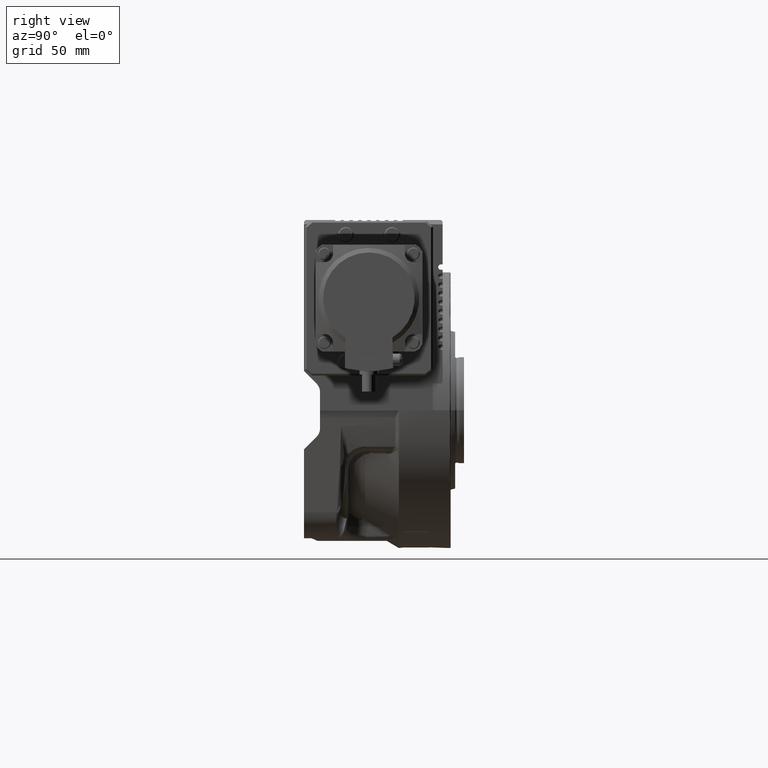
[diagram: clean part render]
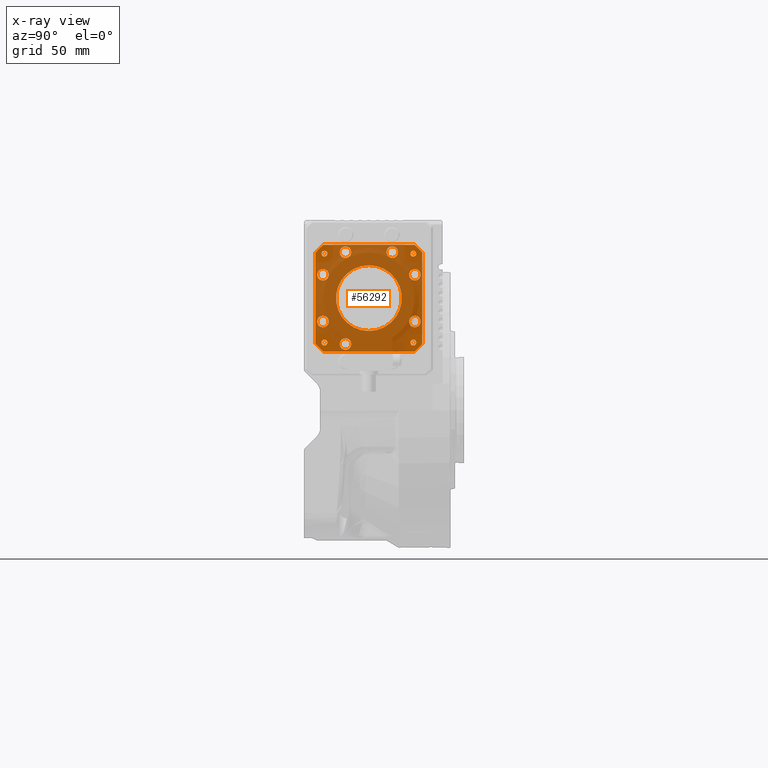
[diagram: x-ray — body ghosted, one internal face saturated and labeled with its STEP entity id]
A machine part, right view, then the same camera in x-ray: the body is ghosted and one INTERNAL B-rep face — a face not visible from any outside direction — is saturated and labeled: STEP entity #56292.
In plain terms, the highlighted planar face has unit normal (1, -0, -0).
Its self-contained STEP definition (entity closure, byte-faithful):
#502 = AXIS2_PLACEMENT_3D ( 'NONE', #1379, #20233, #52288 ) ;
#758 = CARTESIAN_POINT ( 'NONE',  ( -24.99622471494485154, -24.99622471494404863, -71.50000000000002842 ) ) ;
#787 = VERTEX_POINT ( 'NONE', #56957 ) ;
#945 = AXIS2_PLACEMENT_3D ( 'NONE', #15372, #34284, #45814 ) ;
#1262 = DIRECTION ( 'NONE',  ( -1.000000000000000000, 0.000000000000000000, 0.000000000000000000 ) ) ;
#1376 = VERTEX_POINT ( 'NONE', #25057 ) ;
#1379 = CARTESIAN_POINT ( 'NONE',  ( 24.99622471494467035, 24.99622471494424403, -71.50000000000002842 ) ) ;
#1796 = EDGE_CURVE ( 'NONE', #64424, #15662, #50999, .T. ) ;
#2026 = CIRCLE ( 'NONE', #47924, 1.649999999999991696 ) ;
#2153 = EDGE_CURVE ( 'NONE', #10364, #52422, #61493, .T. ) ;
#2171 = ORIENTED_EDGE ( 'NONE', *, *, #6304, .T. ) ;
#2485 = CIRCLE ( 'NONE', #31303, 1.649999999999991696 ) ;
#2538 = LINE ( 'NONE', #27560, #61538 ) ;
#2707 = EDGE_CURVE ( 'NONE', #16694, #59980, #54863, .T. ) ;
#4583 = ORIENTED_EDGE ( 'NONE', *, *, #16312, .T. ) ;
#4785 = FACE_BOUND ( 'NONE', #21285, .T. ) ;
#4808 = CARTESIAN_POINT ( 'NONE',  ( 25.69533031505920917, 30.00000000000002132, -71.50000000000001421 ) ) ;
#5217 = DIRECTION ( 'NONE',  ( 0.000000000000000000, 0.000000000000000000, 1.000000000000000000 ) ) ;
#5226 = EDGE_LOOP ( 'NONE', ( #26901, #14136 ) ) ;
#5608 = DIRECTION ( 'NONE',  ( 0.000000000000000000, 0.000000000000000000, -1.000000000000000000 ) ) ;
#5950 = VERTEX_POINT ( 'NONE', #28495 ) ;
#6010 = FACE_BOUND ( 'NONE', #12744, .T. ) ;
#6289 = EDGE_CURVE ( 'NONE', #49011, #5950, #57719, .T. ) ;
#6304 = EDGE_CURVE ( 'NONE', #29162, #56838, #40636, .T. ) ;
#6323 = EDGE_LOOP ( 'NONE', ( #60320, #22150 ) ) ;
#7144 = AXIS2_PLACEMENT_3D ( 'NONE', #19734, #57545, #69885 ) ;
#7497 = ORIENTED_EDGE ( 'NONE', *, *, #77351, .T. ) ;
#7500 = CARTESIAN_POINT ( 'NONE',  ( -13.16572449244688592, 25.83918920146266629, -71.50000000000002842 ) ) ;
#7637 = VERTEX_POINT ( 'NONE', #34072 ) ;
#7841 = CARTESIAN_POINT ( 'NONE',  ( -30.00000000000001776, 1.040834085586084257E-14, -71.50000000000002842 ) ) ;
#8119 = CARTESIAN_POINT ( 'NONE',  ( 25.69533031505918785, -29.99999999999999289, -71.50000000000001421 ) ) ;
#8474 = CARTESIAN_POINT ( 'NONE',  ( -25.83918920146270182, 13.16572449244680776, -71.50000000000002842 ) ) ;
#8846 = CARTESIAN_POINT ( 'NONE',  ( -5.204170427930421283E-15, 18.50000000000002132, -71.50000000000001421 ) ) ;
#8867 = CIRCLE ( 'NONE', #66578, 3.249999999999999556 ) ;
#8941 = ORIENTED_EDGE ( 'NONE', *, *, #61870, .T. ) ;
#9009 = AXIS2_PLACEMENT_3D ( 'NONE', #33844, #53177, #33450 ) ;
#9181 = DIRECTION ( 'NONE',  ( 0.000000000000000000, 0.000000000000000000, 1.000000000000000000 ) ) ;
#9326 = CARTESIAN_POINT ( 'NONE',  ( -3.469446951953614189E-15, 1.040834085586084257E-14, -71.50000000000001421 ) ) ;
#9373 = CIRCLE ( 'NONE', #31656, 39.50000000000002132 ) ;
#9548 = EDGE_CURVE ( 'NONE', #13126, #18011, #28665, .T. ) ;
#9980 = EDGE_CURVE ( 'NONE', #28465, #19811, #2538, .T. ) ;
#10150 = AXIS2_PLACEMENT_3D ( 'NONE', #13357, #37608, #56527 ) ;
#10364 = VERTEX_POINT ( 'NONE', #47190 ) ;
#10926 = FACE_BOUND ( 'NONE', #31339, .T. ) ;
#11355 = CARTESIAN_POINT ( 'NONE',  ( -25.83918920146280129, -13.16572449244660348, -71.50000000000002842 ) ) ;
#11490 = CARTESIAN_POINT ( 'NONE',  ( -24.99622471494432219, 24.99622471494459575, -71.50000000000002842 ) ) ;
#11593 = DIRECTION ( 'NONE',  ( -0.000000000000000000, -1.000000000000000000, -0.000000000000000000 ) ) ;
#11859 = CARTESIAN_POINT ( 'NONE',  ( -5.204170427930421283E-15, 1.040834085586084257E-14, -71.50000000000002842 ) ) ;
#12350 = DIRECTION ( 'NONE',  ( 1.000000000000000000, 0.000000000000000000, 0.000000000000000000 ) ) ;
#12682 = VERTEX_POINT ( 'NONE', #35809 ) ;
#12734 = CARTESIAN_POINT ( 'NONE',  ( 29.08918920146269116, 13.16572449244680065, -71.50000000000002842 ) ) ;
#12744 = EDGE_LOOP ( 'NONE', ( #15459, #59049 ) ) ;
#13126 = VERTEX_POINT ( 'NONE', #56958 ) ;
#13357 = CARTESIAN_POINT ( 'NONE',  ( -5.204170427930421283E-15, 1.040834085586084257E-14, -71.50000000000002842 ) ) ;
#13446 = CARTESIAN_POINT ( 'NONE',  ( -16.41572449244688414, 25.83918920146266629, -71.50000000000002842 ) ) ;
#13562 = DIRECTION ( 'NONE',  ( 0.000000000000000000, 0.000000000000000000, 1.000000000000000000 ) ) ;
#13613 = ORIENTED_EDGE ( 'NONE', *, *, #21816, .T. ) ;
#14068 = EDGE_CURVE ( 'NONE', #61106, #27919, #33386, .T. ) ;
#14136 = ORIENTED_EDGE ( 'NONE', *, *, #56473, .T. ) ;
#14143 = EDGE_CURVE ( 'NONE', #12682, #61910, #64954, .T. ) ;
#14261 = EDGE_CURVE ( 'NONE', #67599, #63927, #79310, .T. ) ;
#14429 = CIRCLE ( 'NONE', #57741, 39.50000000000002132 ) ;
#14606 = VERTEX_POINT ( 'NONE', #81141 ) ;
#15372 = CARTESIAN_POINT ( 'NONE',  ( 13.16572449244687526, -25.83918920146264142, -71.50000000000002842 ) ) ;
#15459 = ORIENTED_EDGE ( 'NONE', *, *, #20947, .T. ) ;
#15466 = DIRECTION ( 'NONE',  ( 1.000000000000000000, 1.065814103640150279E-14, 0.000000000000000000 ) ) ;
#15583 = AXIS2_PLACEMENT_3D ( 'NONE', #11490, #29592, #78512 ) ;
#15662 = VERTEX_POINT ( 'NONE', #54120 ) ;
#15710 = ORIENTED_EDGE ( 'NONE', *, *, #1796, .T. ) ;
#15751 = CIRCLE ( 'NONE', #26235, 3.249999999999996003 ) ;
#16013 = DIRECTION ( 'NONE',  ( -1.000000000000000000, 0.000000000000000000, 0.000000000000000000 ) ) ;
#16312 = EDGE_CURVE ( 'NONE', #19811, #12682, #80858, .T. ) ;
#16694 = VERTEX_POINT ( 'NONE', #32760 ) ;
#16791 = DIRECTION ( 'NONE',  ( 1.000000000000000000, -0.000000000000000000, 0.000000000000000000 ) ) ;
#17052 = FACE_BOUND ( 'NONE', #46057, .T. ) ;
#17160 = VERTEX_POINT ( 'NONE', #8846 ) ;
#17383 = DIRECTION ( 'NONE',  ( -1.000000000000000000, 0.000000000000000000, 0.000000000000000000 ) ) ;
#17470 = FACE_BOUND ( 'NONE', #57765, .T. ) ;
#18011 = VERTEX_POINT ( 'NONE', #77582 ) ;
#18424 = ORIENTED_EDGE ( 'NONE', *, *, #24948, .T. ) ;
#18809 = CARTESIAN_POINT ( 'NONE',  ( 24.99622471494431508, -24.99622471494458509, -71.50000000000002842 ) ) ;
#19076 = EDGE_CURVE ( 'NONE', #61910, #67599, #14429, .T. ) ;
#19574 = VERTEX_POINT ( 'NONE', #27257 ) ;
#19734 = CARTESIAN_POINT ( 'NONE',  ( 25.83918920146269116, 13.16572449244680065, -71.50000000000002842 ) ) ;
#19811 = VERTEX_POINT ( 'NONE', #24632 ) ;
#20018 = DIRECTION ( 'NONE',  ( 0.000000000000000000, 0.000000000000000000, 1.000000000000000000 ) ) ;
#20233 = DIRECTION ( 'NONE',  ( 0.000000000000000000, 0.000000000000000000, 1.000000000000000000 ) ) ;
#20526 = DIRECTION ( 'NONE',  ( 0.000000000000000000, 0.000000000000000000, 1.000000000000000000 ) ) ;
#20947 = EDGE_CURVE ( 'NONE', #27919, #61106, #38326, .T. ) ;
#20993 = EDGE_LOOP ( 'NONE', ( #7497, #78759 ) ) ;
#21285 = EDGE_LOOP ( 'NONE', ( #48357, #2171 ) ) ;
#21816 = EDGE_CURVE ( 'NONE', #59980, #16694, #15751, .T. ) ;
#22123 = CARTESIAN_POINT ( 'NONE',  ( 23.34622471494432361, -24.99622471494458509, -71.50000000000002842 ) ) ;
#22150 = ORIENTED_EDGE ( 'NONE', *, *, #67196, .T. ) ;
#22502 = EDGE_CURVE ( 'NONE', #52422, #10364, #53727, .T. ) ;
#22742 = ORIENTED_EDGE ( 'NONE', *, *, #45240, .T. ) ;
#23138 = DIRECTION ( 'NONE',  ( 0.000000000000000000, 0.000000000000000000, 1.000000000000000000 ) ) ;
#24130 = CARTESIAN_POINT ( 'NONE',  ( 26.64622471494466183, 24.99622471494424403, -71.50000000000002842 ) ) ;
#24152 = CIRCLE ( 'NONE', #59608, 3.249999999999999556 ) ;
#24180 = DIRECTION ( 'NONE',  ( 0.000000000000000000, 1.000000000000000000, 7.501506923142947918E-16 ) ) ;
#24335 = LINE ( 'NONE', #73690, #25143 ) ;
#24563 = DIRECTION ( 'NONE',  ( -1.000000000000000000, 0.000000000000000000, 0.000000000000000000 ) ) ;
#24632 = CARTESIAN_POINT ( 'NONE',  ( -25.69533031505921983, -29.99999999999997868, -71.50000000000001421 ) ) ;
#24742 = DIRECTION ( 'NONE',  ( 0.000000000000000000, 0.000000000000000000, 1.000000000000000000 ) ) ;
#24936 = ORIENTED_EDGE ( 'NONE', *, *, #59220, .T. ) ;
#24948 = EDGE_CURVE ( 'NONE', #787, #40172, #24335, .T. ) ;
#25057 = CARTESIAN_POINT ( 'NONE',  ( -29.08918920146269826, 13.16572449244680776, -71.50000000000002842 ) ) ;
#25143 = VECTOR ( 'NONE', #11593, 1000.000000000000000 ) ;
#25700 = ORIENTED_EDGE ( 'NONE', *, *, #2153, .T. ) ;
#26235 = AXIS2_PLACEMENT_3D ( 'NONE', #65513, #23138, #17383 ) ;
#26687 = DIRECTION ( 'NONE',  ( -1.000000000000000000, 0.000000000000000000, 0.000000000000000000 ) ) ;
#26901 = ORIENTED_EDGE ( 'NONE', *, *, #77630, .T. ) ;
#27257 = CARTESIAN_POINT ( 'NONE',  ( 23.34622471494467888, 24.99622471494424403, -71.50000000000002842 ) ) ;
#27321 = DIRECTION ( 'NONE',  ( -1.000000000000000000, 0.000000000000000000, 0.000000000000000000 ) ) ;
#27560 = CARTESIAN_POINT ( 'NONE',  ( -5.204170427930336875E-15, -29.99999999999999289, -71.50000000000002842 ) ) ;
#27919 = VERTEX_POINT ( 'NONE', #73163 ) ;
#28086 = EDGE_LOOP ( 'NONE', ( #35108, #52704 ) ) ;
#28213 = DIRECTION ( 'NONE',  ( -0.000000000000000000, 0.000000000000000000, -1.000000000000000000 ) ) ;
#28337 = CARTESIAN_POINT ( 'NONE',  ( -5.204170427930336875E-15, 30.00000000000001776, -71.50000000000002842 ) ) ;
#28465 = VERTEX_POINT ( 'NONE', #8119 ) ;
#28495 = CARTESIAN_POINT ( 'NONE',  ( -23.34622471494486007, -24.99622471494404863, -71.50000000000002842 ) ) ;
#28665 = CIRCLE ( 'NONE', #41759, 3.249999999999996003 ) ;
#28898 = CARTESIAN_POINT ( 'NONE',  ( -25.83918920146270182, 13.16572449244680776, -71.50000000000002842 ) ) ;
#28913 = DIRECTION ( 'NONE',  ( -0.000000000000000000, 0.000000000000000000, -1.000000000000000000 ) ) ;
#29162 = VERTEX_POINT ( 'NONE', #73699 ) ;
#29329 = EDGE_LOOP ( 'NONE', ( #67743, #25700 ) ) ;
#29592 = DIRECTION ( 'NONE',  ( 0.000000000000000000, 0.000000000000000000, 1.000000000000000000 ) ) ;
#29624 = AXIS2_PLACEMENT_3D ( 'NONE', #45611, #38636, #76844 ) ;
#29815 = FACE_BOUND ( 'NONE', #6323, .T. ) ;
#29856 = AXIS2_PLACEMENT_3D ( 'NONE', #37208, #5608, #61885 ) ;
#30262 = DIRECTION ( 'NONE',  ( -1.000000000000000000, 0.000000000000000000, 0.000000000000000000 ) ) ;
#30798 = CIRCLE ( 'NONE', #53155, 1.649999999999991696 ) ;
#31046 = FACE_OUTER_BOUND ( 'NONE', #59328, .T. ) ;
#31303 = AXIS2_PLACEMENT_3D ( 'NONE', #53223, #78285, #45831 ) ;
#31339 = EDGE_LOOP ( 'NONE', ( #15710, #81070 ) ) ;
#31656 = AXIS2_PLACEMENT_3D ( 'NONE', #35895, #28913, #67945 ) ;
#32086 = AXIS2_PLACEMENT_3D ( 'NONE', #8474, #33508, #27321 ) ;
#32760 = CARTESIAN_POINT ( 'NONE',  ( -16.41572449244706888, -25.83918920146254905, -71.50000000000002842 ) ) ;
#33386 = CIRCLE ( 'NONE', #7144, 3.249999999999999556 ) ;
#33450 = DIRECTION ( 'NONE',  ( -1.000000000000000000, 0.000000000000000000, 0.000000000000000000 ) ) ;
#33508 = DIRECTION ( 'NONE',  ( 0.000000000000000000, 0.000000000000000000, 1.000000000000000000 ) ) ;
#33844 = CARTESIAN_POINT ( 'NONE',  ( -25.83918920146280129, -13.16572449244660348, -71.50000000000002842 ) ) ;
#33887 = AXIS2_PLACEMENT_3D ( 'NONE', #40510, #53284, #54100 ) ;
#34072 = CARTESIAN_POINT ( 'NONE',  ( -26.64622471494431366, 24.99622471494459575, -71.50000000000002842 ) ) ;
#34236 = DIRECTION ( 'NONE',  ( -1.000000000000000000, 0.000000000000000000, 0.000000000000000000 ) ) ;
#34284 = DIRECTION ( 'NONE',  ( 0.000000000000000000, 0.000000000000000000, 1.000000000000000000 ) ) ;
#34305 = CIRCLE ( 'NONE', #40873, 39.50000000000000711 ) ;
#34342 = CIRCLE ( 'NONE', #80310, 3.249999999999996003 ) ;
#34347 = CIRCLE ( 'NONE', #502, 1.649999999999991696 ) ;
#34669 = EDGE_CURVE ( 'NONE', #1376, #79478, #67521, .T. ) ;
#35108 = ORIENTED_EDGE ( 'NONE', *, *, #34669, .T. ) ;
#35585 = FACE_BOUND ( 'NONE', #29329, .T. ) ;
#35809 = CARTESIAN_POINT ( 'NONE',  ( -30.00000000000001421, -25.69533031505918075, -71.50000000000001421 ) ) ;
#35895 = CARTESIAN_POINT ( 'NONE',  ( -3.469446951953614189E-15, 1.040834085586084257E-14, -71.50000000000001421 ) ) ;
#36113 = DIRECTION ( 'NONE',  ( -1.406815152949039769E-31, -3.750753461571474945E-16, 1.000000000000000000 ) ) ;
#36382 = FACE_BOUND ( 'NONE', #28086, .T. ) ;
#36435 = EDGE_CURVE ( 'NONE', #56838, #29162, #2026, .T. ) ;
#37208 = CARTESIAN_POINT ( 'NONE',  ( -5.204170427930336875E-15, 1.040834085586084257E-14, -71.50000000000002842 ) ) ;
#37608 = DIRECTION ( 'NONE',  ( -1.406815152949039769E-31, -3.750753461571474945E-16, 1.000000000000000000 ) ) ;
#38326 = CIRCLE ( 'NONE', #63263, 3.249999999999999556 ) ;
#38636 = DIRECTION ( 'NONE',  ( -0.000000000000000000, 0.000000000000000000, -1.000000000000000000 ) ) ;
#39108 = CARTESIAN_POINT ( 'NONE',  ( 25.83918920146269116, 13.16572449244680065, -71.50000000000002842 ) ) ;
#39478 = EDGE_CURVE ( 'NONE', #7637, #14606, #41793, .T. ) ;
#40120 = ORIENTED_EDGE ( 'NONE', *, *, #19076, .T. ) ;
#40172 = VERTEX_POINT ( 'NONE', #47079 ) ;
#40468 = AXIS2_PLACEMENT_3D ( 'NONE', #7500, #24742, #62574 ) ;
#40510 = CARTESIAN_POINT ( 'NONE',  ( -24.99622471494432219, 24.99622471494459575, -71.50000000000002842 ) ) ;
#40636 = CIRCLE ( 'NONE', #59091, 1.649999999999991696 ) ;
#40873 = AXIS2_PLACEMENT_3D ( 'NONE', #55917, #80584, #12350 ) ;
#40891 = ORIENTED_EDGE ( 'NONE', *, *, #14261, .T. ) ;
#41150 = DIRECTION ( 'NONE',  ( -1.000000000000000000, 0.000000000000000000, 0.000000000000000000 ) ) ;
#41228 = DIRECTION ( 'NONE',  ( -1.000000000000000000, 0.000000000000000000, 0.000000000000000000 ) ) ;
#41475 = DIRECTION ( 'NONE',  ( 0.000000000000000000, 0.000000000000000000, 1.000000000000000000 ) ) ;
#41739 = CIRCLE ( 'NONE', #33887, 1.649999999999991696 ) ;
#41759 = AXIS2_PLACEMENT_3D ( 'NONE', #65480, #9181, #34236 ) ;
#41793 = CIRCLE ( 'NONE', #15583, 1.649999999999991696 ) ;
#41949 = CARTESIAN_POINT ( 'NONE',  ( 25.83918920146269471, -13.16572449244678644, -71.50000000000002842 ) ) ;
#42037 = DIRECTION ( 'NONE',  ( 0.000000000000000000, 0.000000000000000000, 1.000000000000000000 ) ) ;
#43761 = EDGE_CURVE ( 'NONE', #69138, #19574, #34347, .T. ) ;
#44603 = EDGE_CURVE ( 'NONE', #15662, #64424, #24152, .T. ) ;
#44819 = CARTESIAN_POINT ( 'NONE',  ( 13.16572449244687526, -25.83918920146264142, -71.50000000000002842 ) ) ;
#45240 = EDGE_CURVE ( 'NONE', #5950, #49011, #30798, .T. ) ;
#45611 = CARTESIAN_POINT ( 'NONE',  ( -3.469446951953614189E-15, 1.040834085586084257E-14, -71.50000000000001421 ) ) ;
#45814 = DIRECTION ( 'NONE',  ( -1.000000000000000000, 0.000000000000000000, 0.000000000000000000 ) ) ;
#45831 = DIRECTION ( 'NONE',  ( -1.000000000000000000, 0.000000000000000000, 0.000000000000000000 ) ) ;
#46045 = DIRECTION ( 'NONE',  ( 0.000000000000000000, 1.000000000000000000, 0.000000000000000000 ) ) ;
#46057 = EDGE_LOOP ( 'NONE', ( #46863, #22742 ) ) ;
#46093 = AXIS2_PLACEMENT_3D ( 'NONE', #28898, #42037, #41228 ) ;
#46863 = ORIENTED_EDGE ( 'NONE', *, *, #6289, .T. ) ;
#47079 = CARTESIAN_POINT ( 'NONE',  ( 29.99999999999999289, -25.69533031505919496, -71.50000000000001421 ) ) ;
#47190 = CARTESIAN_POINT ( 'NONE',  ( -9.915724492446885918, 25.83918920146266629, -71.50000000000002842 ) ) ;
#47229 = AXIS2_PLACEMENT_3D ( 'NONE', #758, #20018, #24563 ) ;
#47924 = AXIS2_PLACEMENT_3D ( 'NONE', #49798, #69907, #75278 ) ;
#48357 = ORIENTED_EDGE ( 'NONE', *, *, #36435, .T. ) ;
#48465 = CARTESIAN_POINT ( 'NONE',  ( -9.915724492447077765, -25.83918920146254905, -71.50000000000002842 ) ) ;
#48493 = AXIS2_PLACEMENT_3D ( 'NONE', #75641, #20526, #26687 ) ;
#48589 = EDGE_CURVE ( 'NONE', #72082, #54322, #63860, .T. ) ;
#48932 = CARTESIAN_POINT ( 'NONE',  ( -22.58918920146270537, 13.16572449244680776, -71.50000000000002842 ) ) ;
#48995 = ORIENTED_EDGE ( 'NONE', *, *, #14143, .T. ) ;
#49011 = VERTEX_POINT ( 'NONE', #53927 ) ;
#49798 = CARTESIAN_POINT ( 'NONE',  ( 24.99622471494431508, -24.99622471494458509, -71.50000000000002842 ) ) ;
#50999 = CIRCLE ( 'NONE', #9009, 3.249999999999999556 ) ;
#51373 = CIRCLE ( 'NONE', #46093, 3.249999999999996003 ) ;
#52260 = DIRECTION ( 'NONE',  ( -1.000000000000000000, 0.000000000000000000, 0.000000000000000000 ) ) ;
#52288 = DIRECTION ( 'NONE',  ( -1.000000000000000000, 0.000000000000000000, 0.000000000000000000 ) ) ;
#52422 = VERTEX_POINT ( 'NONE', #13446 ) ;
#52660 = DIRECTION ( 'NONE',  ( -1.000000000000000000, 0.000000000000000000, -0.000000000000000000 ) ) ;
#52704 = ORIENTED_EDGE ( 'NONE', *, *, #80346, .T. ) ;
#53155 = AXIS2_PLACEMENT_3D ( 'NONE', #72325, #41475, #16013 ) ;
#53177 = DIRECTION ( 'NONE',  ( 0.000000000000000000, 0.000000000000000000, 1.000000000000000000 ) ) ;
#53223 = CARTESIAN_POINT ( 'NONE',  ( 24.99622471494467035, 24.99622471494424403, -71.50000000000002842 ) ) ;
#53284 = DIRECTION ( 'NONE',  ( 0.000000000000000000, 0.000000000000000000, 1.000000000000000000 ) ) ;
#53606 = CIRCLE ( 'NONE', #61451, 18.50000000000000355 ) ;
#53727 = CIRCLE ( 'NONE', #48493, 3.249999999999999556 ) ;
#53927 = CARTESIAN_POINT ( 'NONE',  ( -26.64622471494484302, -24.99622471494404863, -71.50000000000002842 ) ) ;
#54100 = DIRECTION ( 'NONE',  ( -1.000000000000000000, 0.000000000000000000, 0.000000000000000000 ) ) ;
#54115 = EDGE_LOOP ( 'NONE', ( #24936, #59205 ) ) ;
#54120 = CARTESIAN_POINT ( 'NONE',  ( -22.58918920146280129, -13.16572449244660348, -71.50000000000002842 ) ) ;
#54322 = VERTEX_POINT ( 'NONE', #55176 ) ;
#54863 = CIRCLE ( 'NONE', #75865, 3.249999999999996003 ) ;
#55176 = CARTESIAN_POINT ( 'NONE',  ( 9.915724492446875260, -25.83918920146264142, -71.50000000000002842 ) ) ;
#55319 = FACE_BOUND ( 'NONE', #66241, .T. ) ;
#55516 = CARTESIAN_POINT ( 'NONE',  ( -30.00000000000001421, 25.69533031505921983, -71.50000000000001421 ) ) ;
#55917 = CARTESIAN_POINT ( 'NONE',  ( -3.469446951953614189E-15, 1.040834085586084257E-14, -71.50000000000001421 ) ) ;
#56292 = ADVANCED_FACE ( 'NONE', ( #67238, #17052, #4785, #68034, #29815, #55319, #17470, #36382, #10926, #62291, #6010, #35585, #31046 ), #61065, .T. ) ;
#56473 = EDGE_CURVE ( 'NONE', #58344, #17160, #58728, .T. ) ;
#56527 = DIRECTION ( 'NONE',  ( 0.000000000000000000, 1.000000000000000000, 7.501506923142947918E-16 ) ) ;
#56838 = VERTEX_POINT ( 'NONE', #22123 ) ;
#56957 = CARTESIAN_POINT ( 'NONE',  ( 29.99999999999999289, 25.69533031505923049, -71.50000000000001421 ) ) ;
#56958 = CARTESIAN_POINT ( 'NONE',  ( 29.08918920146269116, -13.16572449244678644, -71.50000000000002842 ) ) ;
#57032 = CARTESIAN_POINT ( 'NONE',  ( -13.16572449244707244, -25.83918920146254905, -71.50000000000002842 ) ) ;
#57545 = DIRECTION ( 'NONE',  ( 0.000000000000000000, 0.000000000000000000, 1.000000000000000000 ) ) ;
#57719 = CIRCLE ( 'NONE', #47229, 1.649999999999991696 ) ;
#57741 = AXIS2_PLACEMENT_3D ( 'NONE', #9326, #28213, #15466 ) ;
#57765 = EDGE_LOOP ( 'NONE', ( #74578, #73409 ) ) ;
#58344 = VERTEX_POINT ( 'NONE', #77344 ) ;
#58728 = CIRCLE ( 'NONE', #10150, 18.50000000000000355 ) ;
#59049 = ORIENTED_EDGE ( 'NONE', *, *, #14068, .T. ) ;
#59091 = AXIS2_PLACEMENT_3D ( 'NONE', #18809, #70163, #74706 ) ;
#59205 = ORIENTED_EDGE ( 'NONE', *, *, #43761, .T. ) ;
#59220 = EDGE_CURVE ( 'NONE', #19574, #69138, #2485, .T. ) ;
#59328 = EDGE_LOOP ( 'NONE', ( #48995, #40120, #40891, #64480, #18424, #8941, #64723, #4583 ) ) ;
#59608 = AXIS2_PLACEMENT_3D ( 'NONE', #11355, #5217, #30262 ) ;
#59980 = VERTEX_POINT ( 'NONE', #48465 ) ;
#60320 = ORIENTED_EDGE ( 'NONE', *, *, #39478, .T. ) ;
#61065 = PLANE ( 'NONE',  #29856 ) ;
#61106 = VERTEX_POINT ( 'NONE', #12734 ) ;
#61451 = AXIS2_PLACEMENT_3D ( 'NONE', #11859, #36113, #24180 ) ;
#61493 = CIRCLE ( 'NONE', #40468, 3.249999999999999556 ) ;
#61538 = VECTOR ( 'NONE', #52660, 1000.000000000000000 ) ;
#61870 = EDGE_CURVE ( 'NONE', #40172, #28465, #34305, .T. ) ;
#61885 = DIRECTION ( 'NONE',  ( -1.000000000000000000, 0.000000000000000000, -0.000000000000000000 ) ) ;
#61910 = VERTEX_POINT ( 'NONE', #55516 ) ;
#62291 = FACE_BOUND ( 'NONE', #20993, .T. ) ;
#62574 = DIRECTION ( 'NONE',  ( -1.000000000000000000, 0.000000000000000000, 0.000000000000000000 ) ) ;
#62779 = DIRECTION ( 'NONE',  ( 0.000000000000000000, 0.000000000000000000, 1.000000000000000000 ) ) ;
#63050 = EDGE_CURVE ( 'NONE', #63927, #787, #9373, .T. ) ;
#63204 = DIRECTION ( 'NONE',  ( -1.000000000000000000, 0.000000000000000000, 0.000000000000000000 ) ) ;
#63263 = AXIS2_PLACEMENT_3D ( 'NONE', #39108, #64181, #52260 ) ;
#63539 = EDGE_CURVE ( 'NONE', #18011, #13126, #34342, .T. ) ;
#63860 = CIRCLE ( 'NONE', #945, 3.249999999999999556 ) ;
#63927 = VERTEX_POINT ( 'NONE', #4808 ) ;
#64181 = DIRECTION ( 'NONE',  ( 0.000000000000000000, 0.000000000000000000, 1.000000000000000000 ) ) ;
#64424 = VERTEX_POINT ( 'NONE', #76505 ) ;
#64480 = ORIENTED_EDGE ( 'NONE', *, *, #63050, .T. ) ;
#64723 = ORIENTED_EDGE ( 'NONE', *, *, #9980, .T. ) ;
#64954 = LINE ( 'NONE', #7841, #67481 ) ;
#65480 = CARTESIAN_POINT ( 'NONE',  ( 25.83918920146269471, -13.16572449244678644, -71.50000000000002842 ) ) ;
#65513 = CARTESIAN_POINT ( 'NONE',  ( -13.16572449244707244, -25.83918920146254905, -71.50000000000002842 ) ) ;
#66241 = EDGE_LOOP ( 'NONE', ( #80506, #13613 ) ) ;
#66578 = AXIS2_PLACEMENT_3D ( 'NONE', #44819, #13562, #1262 ) ;
#67196 = EDGE_CURVE ( 'NONE', #14606, #7637, #41739, .T. ) ;
#67238 = FACE_BOUND ( 'NONE', #5226, .T. ) ;
#67481 = VECTOR ( 'NONE', #46045, 1000.000000000000000 ) ;
#67521 = CIRCLE ( 'NONE', #32086, 3.249999999999996003 ) ;
#67599 = VERTEX_POINT ( 'NONE', #71278 ) ;
#67743 = ORIENTED_EDGE ( 'NONE', *, *, #22502, .T. ) ;
#67945 = DIRECTION ( 'NONE',  ( 1.000000000000000000, 0.000000000000000000, 0.000000000000000000 ) ) ;
#68034 = FACE_BOUND ( 'NONE', #54115, .T. ) ;
#68581 = DIRECTION ( 'NONE',  ( 0.000000000000000000, 0.000000000000000000, 1.000000000000000000 ) ) ;
#69138 = VERTEX_POINT ( 'NONE', #24130 ) ;
#69885 = DIRECTION ( 'NONE',  ( -1.000000000000000000, 0.000000000000000000, 0.000000000000000000 ) ) ;
#69907 = DIRECTION ( 'NONE',  ( 0.000000000000000000, 0.000000000000000000, 1.000000000000000000 ) ) ;
#70163 = DIRECTION ( 'NONE',  ( 0.000000000000000000, 0.000000000000000000, 1.000000000000000000 ) ) ;
#71278 = CARTESIAN_POINT ( 'NONE',  ( -25.69533031505921628, 30.00000000000001776, -71.50000000000001421 ) ) ;
#72082 = VERTEX_POINT ( 'NONE', #73793 ) ;
#72325 = CARTESIAN_POINT ( 'NONE',  ( -24.99622471494485154, -24.99622471494404863, -71.50000000000002842 ) ) ;
#73163 = CARTESIAN_POINT ( 'NONE',  ( 22.58918920146269116, 13.16572449244680065, -71.50000000000002842 ) ) ;
#73409 = ORIENTED_EDGE ( 'NONE', *, *, #9548, .T. ) ;
#73690 = CARTESIAN_POINT ( 'NONE',  ( 29.99999999999999289, 1.040834085586084257E-14, -71.50000000000002842 ) ) ;
#73699 = CARTESIAN_POINT ( 'NONE',  ( 26.64622471494430656, -24.99622471494458509, -71.50000000000002842 ) ) ;
#73793 = CARTESIAN_POINT ( 'NONE',  ( 16.41572449244687348, -25.83918920146264142, -71.50000000000002842 ) ) ;
#74578 = ORIENTED_EDGE ( 'NONE', *, *, #63539, .T. ) ;
#74706 = DIRECTION ( 'NONE',  ( -1.000000000000000000, 0.000000000000000000, 0.000000000000000000 ) ) ;
#75278 = DIRECTION ( 'NONE',  ( -1.000000000000000000, 0.000000000000000000, 0.000000000000000000 ) ) ;
#75641 = CARTESIAN_POINT ( 'NONE',  ( -13.16572449244688592, 25.83918920146266629, -71.50000000000002842 ) ) ;
#75865 = AXIS2_PLACEMENT_3D ( 'NONE', #57032, #62779, #63204 ) ;
#76505 = CARTESIAN_POINT ( 'NONE',  ( -29.08918920146279774, -13.16572449244660348, -71.50000000000002842 ) ) ;
#76844 = DIRECTION ( 'NONE',  ( 1.000000000000000000, 7.105427357601003436E-15, 0.000000000000000000 ) ) ;
#77344 = CARTESIAN_POINT ( 'NONE',  ( -2.938573849507818281E-15, -18.49999999999998579, -71.50000000000002842 ) ) ;
#77351 = EDGE_CURVE ( 'NONE', #54322, #72082, #8867, .T. ) ;
#77582 = CARTESIAN_POINT ( 'NONE',  ( 22.58918920146269826, -13.16572449244678644, -71.50000000000002842 ) ) ;
#77630 = EDGE_CURVE ( 'NONE', #17160, #58344, #53606, .T. ) ;
#78285 = DIRECTION ( 'NONE',  ( 0.000000000000000000, 0.000000000000000000, 1.000000000000000000 ) ) ;
#78512 = DIRECTION ( 'NONE',  ( -1.000000000000000000, 0.000000000000000000, 0.000000000000000000 ) ) ;
#78759 = ORIENTED_EDGE ( 'NONE', *, *, #48589, .T. ) ;
#79310 = LINE ( 'NONE', #28337, #79335 ) ;
#79335 = VECTOR ( 'NONE', #16791, 1000.000000000000000 ) ;
#79478 = VERTEX_POINT ( 'NONE', #48932 ) ;
#80310 = AXIS2_PLACEMENT_3D ( 'NONE', #41949, #68581, #41150 ) ;
#80346 = EDGE_CURVE ( 'NONE', #79478, #1376, #51373, .T. ) ;
#80506 = ORIENTED_EDGE ( 'NONE', *, *, #2707, .T. ) ;
#80584 = DIRECTION ( 'NONE',  ( -0.000000000000000000, 0.000000000000000000, -1.000000000000000000 ) ) ;
#80858 = CIRCLE ( 'NONE', #29624, 39.50000000000000711 ) ;
#81070 = ORIENTED_EDGE ( 'NONE', *, *, #44603, .T. ) ;
#81141 = CARTESIAN_POINT ( 'NONE',  ( -23.34622471494433071, 24.99622471494459575, -71.50000000000002842 ) ) ;